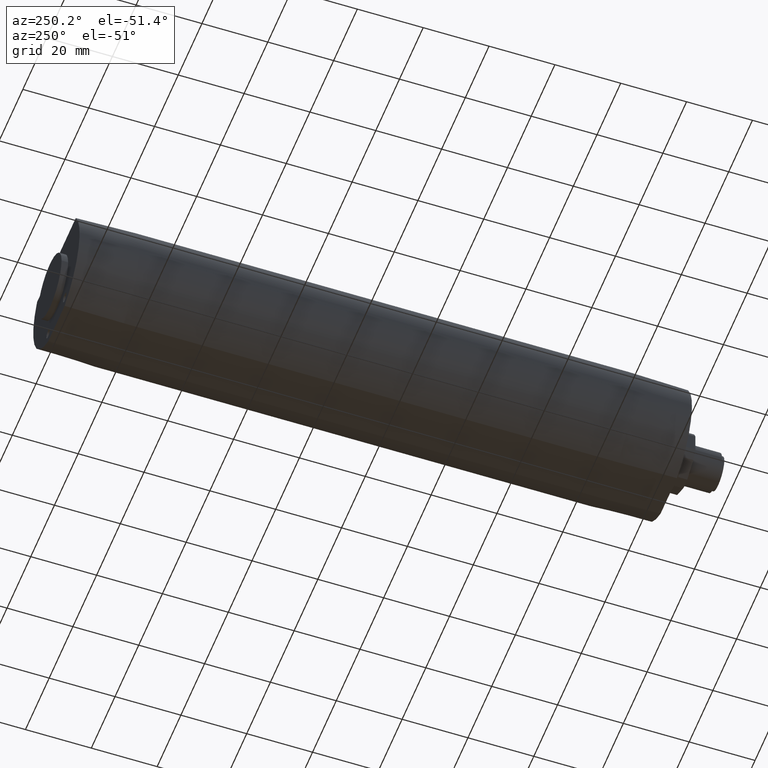
[diagram: clean part render]
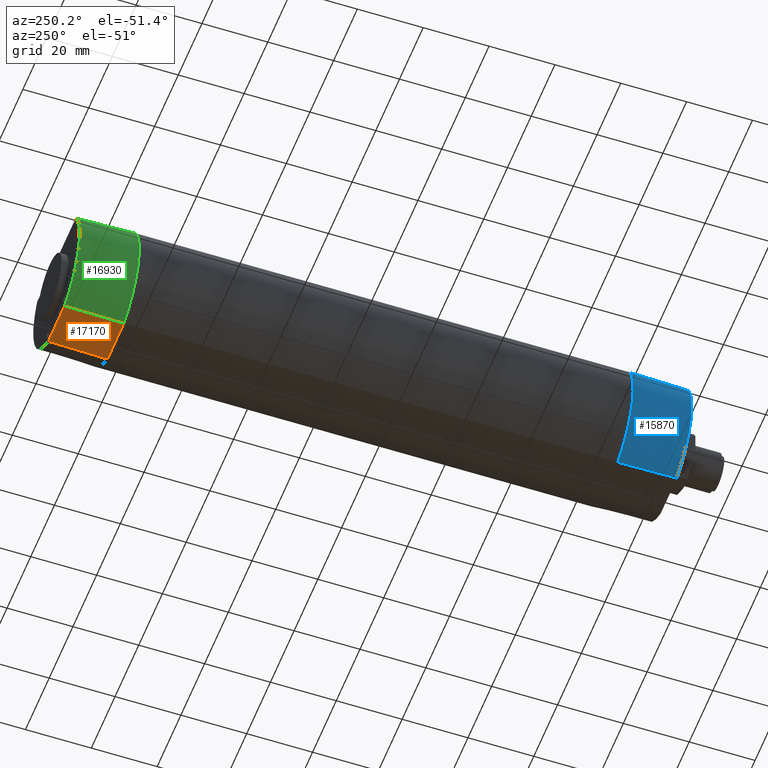
[diagram: same view with three faces highlighted in distinct colors, each labeled with its STEP entity id]
A machine part, auxiliary view with three faces highlighted in distinct colors.
Their STEP definitions:

[orange] entity #17170 — the highlighted planar face has unit normal (0, 0.0244, -0.9997).
#13780=CARTESIAN_POINT('',(-6.95970545353752,-18.75,74.9999999999999));
#13790=VERTEX_POINT('',#13780);
#13820=CARTESIAN_POINT('',(0.,-18.75,75.));
#13830=DIRECTION('',(-1.,0.,0.));
#13840=VECTOR('',#13830,1.);
#13850=LINE('',#13820,#13840);
#13860=CARTESIAN_POINT('',(6.95970545353752,-18.75,75.));
#13870=VERTEX_POINT('',#13860);
#13880=EDGE_CURVE('',#13870,#13790,#13850,.T.);
#16140=CARTESIAN_POINT('',(-6.88024154290118,-18.3100894754653,93.));
#16150=VERTEX_POINT('',#16140);
#16180=CARTESIAN_POINT('',(-6.95970545354292,-18.7499999999992,
74.999999999999));
#16190=CARTESIAN_POINT('',(-6.93336869641478,-18.6033631422292,
81.0000006652515));
#16200=CARTESIAN_POINT('',(-6.90688247259933,-18.4567263004351,
87.0000006768102));
#16210=CARTESIAN_POINT('',(-6.88024154290653,-18.3100894754644,
93.0000000000011));
#16220=B_SPLINE_CURVE_WITH_KNOTS('',3,(#16180,#16190,#16200,#16210),
.UNSPECIFIED.,.F.,.F.,(4,4),(0.,18.0055501421523),.UNSPECIFIED.);
#16230=EDGE_CURVE('',#13790,#16150,#16220,.T.);
#16730=CARTESIAN_POINT('',(6.88024154290164,-18.3100894754652,
93.0000000000017));
#16740=CARTESIAN_POINT('',(6.90688247259439,-18.4567263004359,
87.0000006768112));
#16750=CARTESIAN_POINT('',(6.93336869640987,-18.6033631422299,
81.0000006652528));
#16760=CARTESIAN_POINT('',(6.95970545353793,-18.7499999999999,
75.0000000000006));
#16770=B_SPLINE_CURVE_WITH_KNOTS('',3,(#16730,#16740,#16750,#16760),
.UNSPECIFIED.,.F.,.F.,(4,4),(0.,18.0055501421513),.UNSPECIFIED.);
#16780=CARTESIAN_POINT('',(6.88024154290118,-18.3100894754653,93.));
#16790=VERTEX_POINT('',#16780);
#16800=EDGE_CURVE('',#16790,#13870,#16770,.T.);
#17010=CARTESIAN_POINT('',(7.30769450621495,-18.760997855467,
74.5499962211273));
#17020=DIRECTION('',(0.,-0.999701489781183,0.0244321781526532));
#17030=DIRECTION('',(0.,0.0244321781526532,0.999701489781183));
#17040=AXIS2_PLACEMENT_3D('',#17010,#17020,#17030);
#17050=PLANE('',#17040);
#17060=ORIENTED_EDGE('',*,*,#16230,.F.);
#17070=CARTESIAN_POINT('',(0.,-18.3100894754653,93.));
#17080=DIRECTION('',(-1.,0.,0.));
#17090=VECTOR('',#17080,1.);
#17100=LINE('',#17070,#17090);
#17110=EDGE_CURVE('',#16790,#16150,#17100,.T.);
#17120=ORIENTED_EDGE('',*,*,#17110,.T.);
#17130=ORIENTED_EDGE('',*,*,#16800,.F.);
#17140=ORIENTED_EDGE('',*,*,#13880,.F.);
#17150=EDGE_LOOP('',(#17140,#17130,#17120,#17060));
#17160=FACE_OUTER_BOUND('',#17150,.T.);
#17170=ADVANCED_FACE('',(#17160),#17050,.T.);

[blue] entity #15870 — the highlighted conical surface has half-angle 1.4 deg.
#9290=CARTESIAN_POINT('',(16.3345515631189,10.7600894754653,-93.));
#9300=VERTEX_POINT('',#9290);
#9480=CARTESIAN_POINT('',(6.88024154290118,-18.3100894754653,-93.));
#9490=VERTEX_POINT('',#9480);
#9520=CARTESIAN_POINT('',(4.26570789520023E-14,-5.6579239104059E-15,
-92.9999999999999));
#9530=DIRECTION('',(5.35723590395572E-16,-7.06812270810495E-16,-1.));
#9540=DIRECTION('',(0.,1.,-7.06812270810495E-16));
#9550=AXIS2_PLACEMENT_3D('',#9520,#9530,#9540);
#9560=CIRCLE('',#9550,19.5600894754653);
#9570=EDGE_CURVE('',#9300,#9490,#9560,.T.);
#13330=CARTESIAN_POINT('',(6.95970545354248,-18.7499999999991,
-75.0000000000014));
#13340=CARTESIAN_POINT('',(6.93336869641444,-18.6033631422291,
-81.0000006652526));
#13350=CARTESIAN_POINT('',(6.90688247259911,-18.4567263004351,
-87.0000006768101));
#13360=CARTESIAN_POINT('',(6.88024154290638,-18.3100894754644,
-92.9999999999997));
#13370=B_SPLINE_CURVE_WITH_KNOTS('',3,(#13330,#13340,#13350,#13360),
.UNSPECIFIED.,.F.,.F.,(4,4),(0.,18.0055501421486),.UNSPECIFIED.);
#13380=CARTESIAN_POINT('',(6.95970545353752,-18.75,-74.9999999999999));
#13390=VERTEX_POINT('',#13380);
#13400=EDGE_CURVE('',#13390,#9490,#13370,.T.);
#14110=CARTESIAN_POINT('',(-5.69743333006917E-15,1.75599164270057E-15,
-74.9999999999736));
#14120=DIRECTION('',(2.67861795197786E-16,-3.53406135405247E-16,-1.));
#14130=DIRECTION('',(1.,9.46640018635614E-32,2.67861795197786E-16));
#14140=AXIS2_PLACEMENT_3D('',#14110,#14120,#14130);
#14150=CIRCLE('',#14140,20.0000000000003);
#14160=CARTESIAN_POINT('',(16.5698521417664,11.2,-74.9999999999999));
#14170=VERTEX_POINT('',#14160);
#14180=EDGE_CURVE('',#14170,#13390,#14150,.T.);
#15580=CARTESIAN_POINT('',(16.3345515631189,10.7600894754653,
-92.9999999999993));
#15590=CARTESIAN_POINT('',(16.4135499125741,10.9067261359855,
-87.0000074056997));
#15600=CARTESIAN_POINT('',(16.4919754200436,11.0533629813374,
-81.0000072485607));
#15610=CARTESIAN_POINT('',(16.5698521417655,11.1999999999985,
-75.0000000000612));
#15620=B_SPLINE_CURVE_WITH_KNOTS('',3,(#15580,#15590,#15600,#15610),
.UNSPECIFIED.,.F.,.F.,(4,4),(0.,18.0069122704967),.UNSPECIFIED.);
#15630=EDGE_CURVE('',#9300,#14170,#15620,.T.);
#15760=CARTESIAN_POINT('',(3.27725445683323E-14,7.38333527414393E-15,
-74.5491896177813));
#15770=DIRECTION('',(-5.35723590395572E-16,7.06812270810495E-16,1.));
#15780=DIRECTION('',(0.,1.,-7.06812270810495E-16));
#15790=AXIS2_PLACEMENT_3D('',#15760,#15770,#15780);
#15800=CONICAL_SURFACE('',#15790,20.0110175684282,0.0244346095279212);
#15810=ORIENTED_EDGE('',*,*,#15630,.T.);
#15820=ORIENTED_EDGE('',*,*,#9570,.F.);
#15830=ORIENTED_EDGE('',*,*,#13400,.T.);
#15840=ORIENTED_EDGE('',*,*,#14180,.T.);
#15850=EDGE_LOOP('',(#15840,#15830,#15820,#15810));
#15860=FACE_OUTER_BOUND('',#15850,.T.);
#15870=ADVANCED_FACE('',(#15860),#15800,.T.);

[green] entity #16930 — the highlighted conical surface has half-angle 1.4 deg.
#13860=CARTESIAN_POINT('',(6.95970545353752,-18.75,75.));
#13870=VERTEX_POINT('',#13860);
#14210=CARTESIAN_POINT('',(-5.39975551799169E-14,-1.12440856692483E-13,
75.0000000000269));
#14220=DIRECTION('',(1.23496678478392E-15,3.81502863814771E-15,1.));
#14230=DIRECTION('',(1.,-4.71143365111188E-30,-1.23496678478392E-15));
#14240=AXIS2_PLACEMENT_3D('',#14210,#14220,#14230);
#14250=CIRCLE('',#14240,19.9999999999997);
#14260=CARTESIAN_POINT('',(16.5698521417664,11.2,75.));
#14270=VERTEX_POINT('',#14260);
#14280=EDGE_CURVE('',#13870,#14270,#14250,.T.);
#16410=CARTESIAN_POINT('',(16.5698521417709,11.1999999999984,75.));
#16420=CARTESIAN_POINT('',(16.4919754200487,11.0533629813368,
81.0000072485205));
#16430=CARTESIAN_POINT('',(16.4135499125743,10.9067261359859,
87.0000074056804));
#16440=CARTESIAN_POINT('',(16.3345515631188,10.7600894754653,
93.0000000000009));
#16450=B_SPLINE_CURVE_WITH_KNOTS('',3,(#16410,#16420,#16430,#16440),
.UNSPECIFIED.,.F.,.F.,(4,4),(0.,18.0069122705595),.UNSPECIFIED.);
#16460=CARTESIAN_POINT('',(16.3345515631189,10.7600894754653,93.));
#16470=VERTEX_POINT('',#16460);
#16480=EDGE_CURVE('',#14270,#16470,#16450,.T.);
#16680=CARTESIAN_POINT('',(-6.46996610715977E-14,-2.24768708743919E-13,
74.5491896177198));
#16690=DIRECTION('',(-2.46993356956785E-15,-7.63005727629543E-15,-1.));
#16700=DIRECTION('',(0.,-1.,7.63005727629543E-15));
#16710=AXIS2_PLACEMENT_3D('',#16680,#16690,#16700);
#16720=CONICAL_SURFACE('',#16710,20.0110175684297,0.0244346095279202);
#16730=CARTESIAN_POINT('',(6.88024154290164,-18.3100894754652,
93.0000000000017));
#16740=CARTESIAN_POINT('',(6.90688247259439,-18.4567263004359,
87.0000006768112));
#16750=CARTESIAN_POINT('',(6.93336869640987,-18.6033631422299,
81.0000006652528));
#16760=CARTESIAN_POINT('',(6.95970545353793,-18.7499999999999,
75.0000000000006));
#16770=B_SPLINE_CURVE_WITH_KNOTS('',3,(#16730,#16740,#16750,#16760),
.UNSPECIFIED.,.F.,.F.,(4,4),(0.,18.0055501421513),.UNSPECIFIED.);
#16780=CARTESIAN_POINT('',(6.88024154290118,-18.3100894754653,93.));
#16790=VERTEX_POINT('',#16780);
#16800=EDGE_CURVE('',#16790,#13870,#16770,.T.);
#16810=ORIENTED_EDGE('',*,*,#16800,.T.);
#16820=CARTESIAN_POINT('',(-1.91273851226735E-14,-8.39879687330563E-14,
92.9999999999997));
#16830=DIRECTION('',(2.46993356956785E-15,7.63005727629543E-15,1.));
#16840=DIRECTION('',(0.,-1.,7.63005727629543E-15));
#16850=AXIS2_PLACEMENT_3D('',#16820,#16830,#16840);
#16860=CIRCLE('',#16850,19.5600894754653);
#16870=EDGE_CURVE('',#16790,#16470,#16860,.T.);
#16880=ORIENTED_EDGE('',*,*,#16870,.F.);
#16890=ORIENTED_EDGE('',*,*,#16480,.T.);
#16900=ORIENTED_EDGE('',*,*,#14280,.T.);
#16910=EDGE_LOOP('',(#16900,#16890,#16880,#16810));
#16920=FACE_OUTER_BOUND('',#16910,.T.);
#16930=ADVANCED_FACE('',(#16920),#16720,.T.);